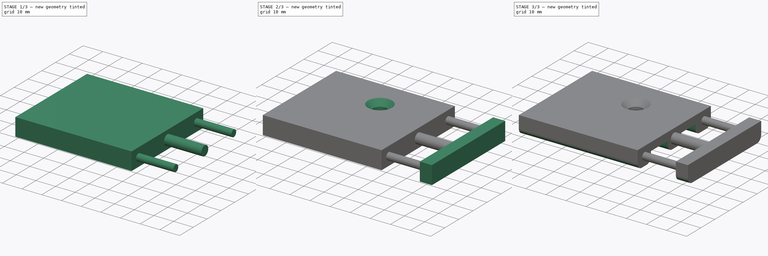
[diagram: build sequence overview — one tinted view per stage of 3, left to right]
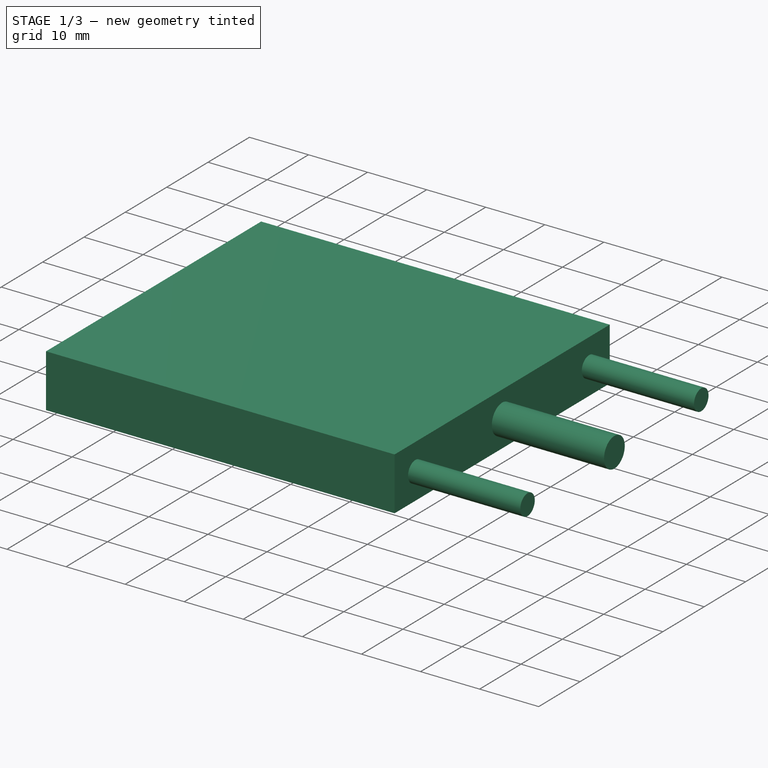
[diagram: stage 1 of 3 — iso view after this stage's code; geometry added in this stage tinted green]
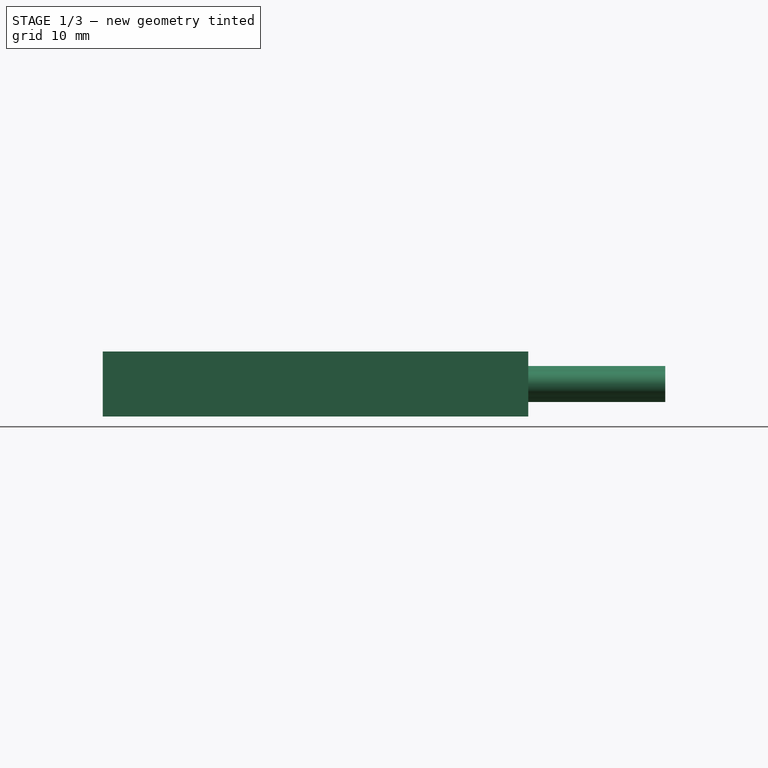
[diagram: stage 1 of 3 — front view after this stage's code; geometry added in this stage tinted green]
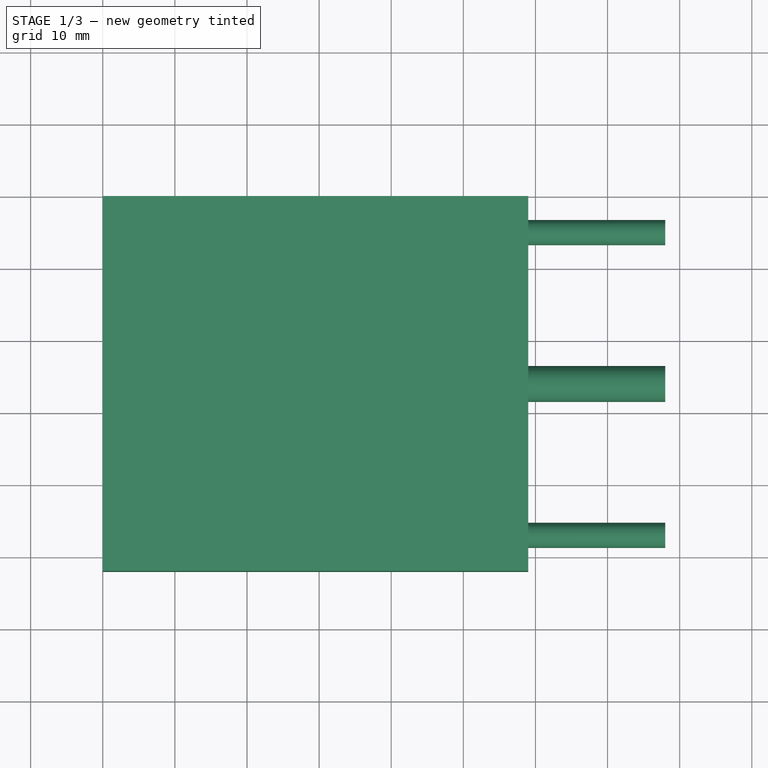
[diagram: stage 1 of 3 — top view after this stage's code; geometry added in this stage tinted green]
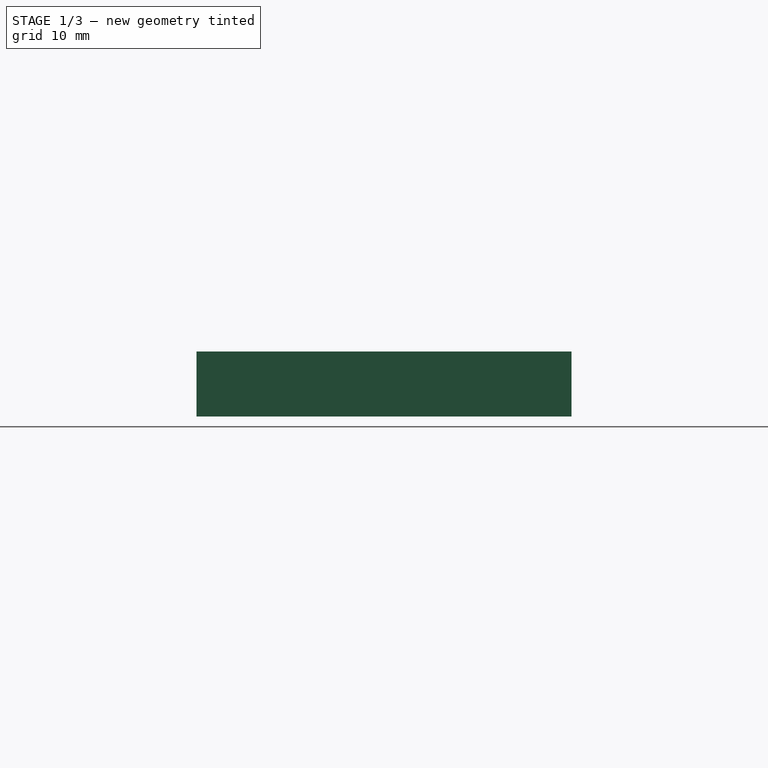
[diagram: stage 1 of 3 — right view after this stage's code; geometry added in this stage tinted green]
FCSTD DOCUMENT  (FreeCAD 0.18R16155 (Git))
Label: biltema_27-0500_mobilholder_cykel_clamp
License: All rights reserved
LicenseURL: http://en.wikipedia.org/wiki/All_rights_reserved
objects: Sketcher::SketchObject×5, PartDesign::Pad×3, PartDesign::Hole×1, PartDesign::Pocket×1, PartDesign::Fillet×1, PartDesign::Body×1
note: 17 computed .brp shape members not serialized (recipe doc carries the construction recipe); baked Part::Feature solids carry a one-line shape summary decoded from their .brp

FEATURE [Sketcher::SketchObject] Sketch
  MapMode = 5
  Support = -> [XY_Plane]
  sketch-geometry (4):
    g0: LineSegment StartX=0 StartY=0 StartZ=0 EndX=59 EndY=0 EndZ=0
    g1: LineSegment StartX=59 StartY=0 StartZ=0 EndX=59 EndY=-52 EndZ=0
    g2: LineSegment StartX=59 StartY=-52 StartZ=0 EndX=0 EndY=-52 EndZ=0
    g3: LineSegment StartX=0 StartY=-52 StartZ=0 EndX=0 EndY=0 EndZ=0
  constraints (11):
    c: Coincident(g0,g1)
    c: Coincident(g1,g2)
    c: Coincident(g2,g3)
    c: Coincident(g3,g0)
    c: Horizontal(g0)
    c: Horizontal(g2)
    c: Vertical(g1)
    c: Vertical(g3)
    c: DistanceX(g0,g0) = 59
    c: DistanceY(g3,g3) = 52
    c: Coincident(g0,g-1)
FEATURE [PartDesign::Pad] Pad
  Length = 9
  Length2 = 100
  Profile = -> Sketch
  Type = 0
FEATURE [Sketcher::SketchObject] Sketch001
  ExternalGeometry = -> [Pad]
  MapMode = 5
  Placement = pos=(59,0,0) rot=(0.57735,0.57735,0.57735;2.0944rad)
  Support = -> [Pad]
  sketch-geometry (5):
    g0: Circle CenterX=-47 CenterY=4.5 CenterZ=0 NormalX=0 NormalY=0 NormalZ=1 AngleXU=0 Radius=1.75
    g1: Circle CenterX=-5 CenterY=4.5 CenterZ=0 NormalX=0 NormalY=0 NormalZ=1 AngleXU=0 Radius=1.75
    g2: LineSegment [constr] StartX=-52 StartY=4.5 StartZ=0 EndX=0 EndY=4.5 EndZ=0
    g3: GeomPoint X=-26 Y=4.5 Z=0
    g4: Circle CenterX=-26 CenterY=4.5 CenterZ=0 NormalX=0 NormalY=0 NormalZ=1 AngleXU=0 Radius=2.5
  constraints (11):
    c: Diameter(g0) = 3.5
    c: Equal(g0,g1) = 3.5
    c: Horizontal(g2)
    c: Vertical(g2,g-1)
    c: Symmetric(g-3,g-4,g2)
    c: PointOnObject(g1,g2)
    c: DistanceX(g0,g1) = 42
    c: Symmetric(g2,g2,g3)
    c: Symmetric(g1,g0,g3)
    c: Coincident(g4,g3)
    c: Diameter(g4) = 5
FEATURE [PartDesign::Pad] Pad001
  BaseFeature = -> Pad
  Length = 19
  Length2 = 100
  Profile = -> Sketch001
  Type = 0
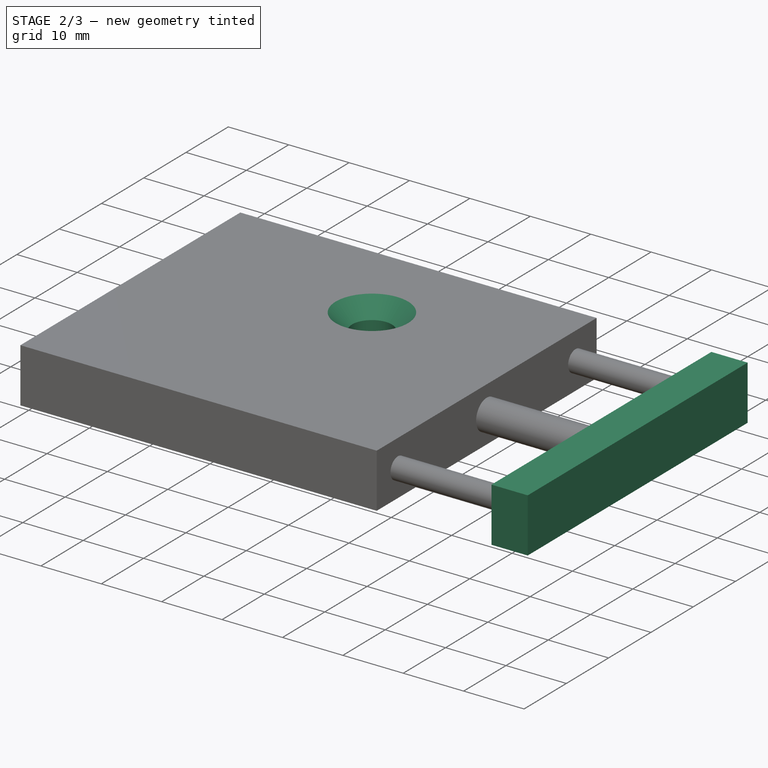
[diagram: stage 2 of 3 — iso view after this stage's code; geometry added in this stage tinted green]
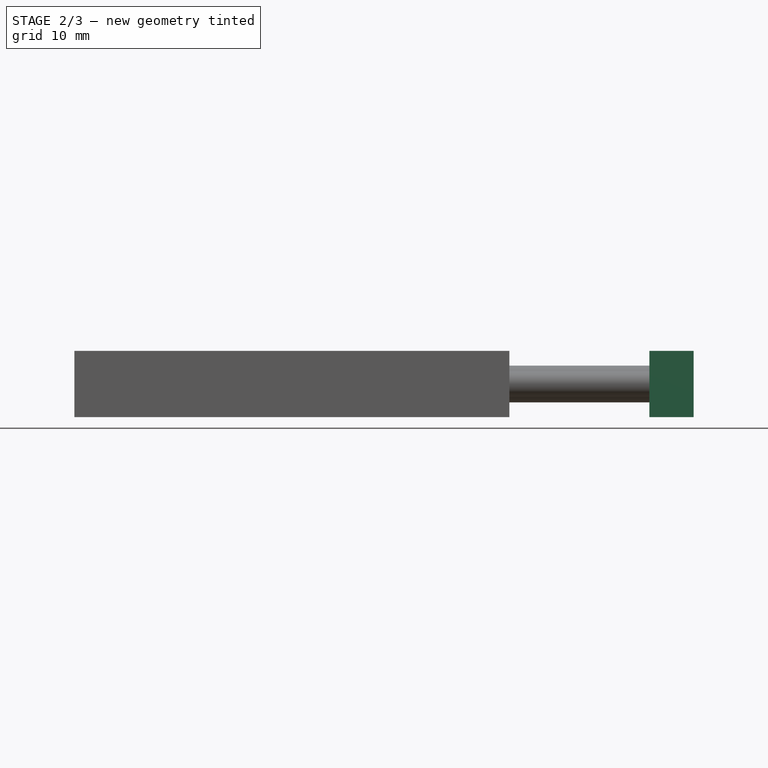
[diagram: stage 2 of 3 — front view after this stage's code; geometry added in this stage tinted green]
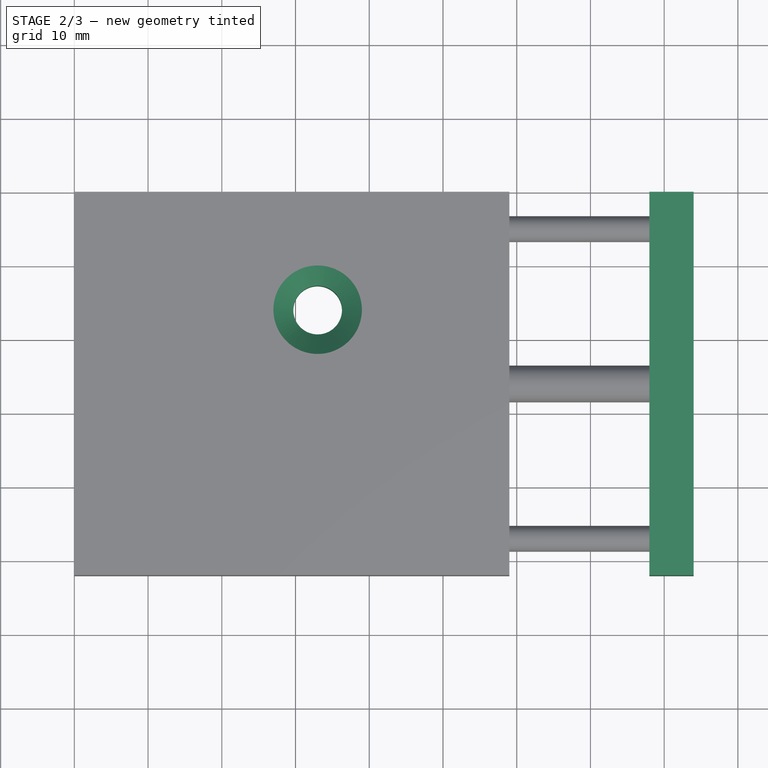
[diagram: stage 2 of 3 — top view after this stage's code; geometry added in this stage tinted green]
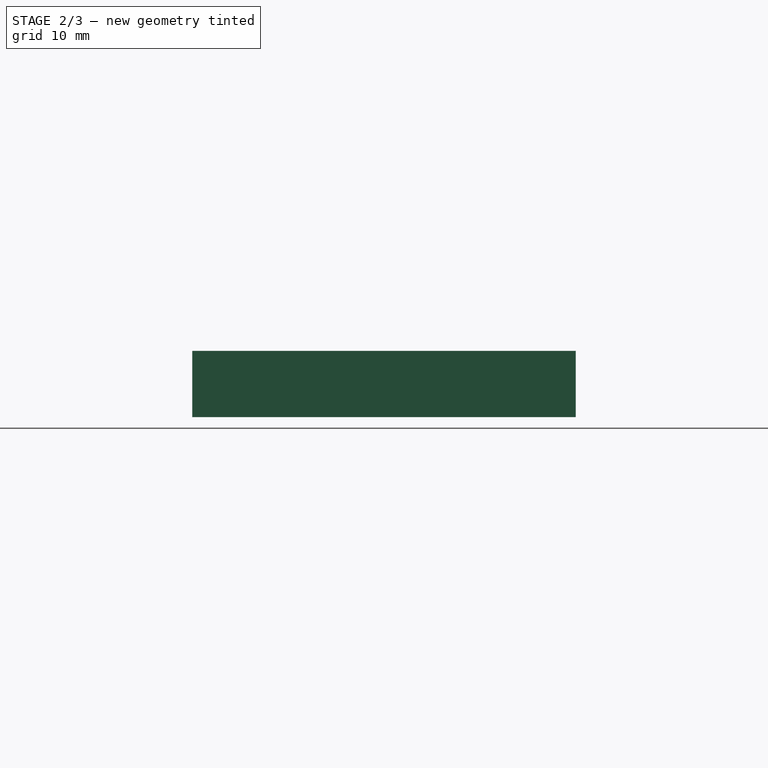
[diagram: stage 2 of 3 — right view after this stage's code; geometry added in this stage tinted green]
FEATURE [Sketcher::SketchObject] Sketch002
  ExternalGeometry = -> [Pad001]
  MapMode = 5
  Placement = pos=(78,0,0) rot=(0.57735,0.57735,0.57735;2.0944rad)
  Support = -> [Pad001]
  sketch-geometry (4):
    g0: LineSegment StartX=-52 StartY=0 StartZ=0 EndX=0 EndY=0 EndZ=0
    g1: LineSegment StartX=0 StartY=0 StartZ=0 EndX=0 EndY=9 EndZ=0
    g2: LineSegment StartX=0 StartY=9 StartZ=0 EndX=-52 EndY=9 EndZ=0
    g3: LineSegment StartX=-52 StartY=9 StartZ=0 EndX=-52 EndY=0 EndZ=0
  constraints (10):
    c: Coincident(g0,g1)
    c: Coincident(g1,g2)
    c: Coincident(g2,g3)
    c: Coincident(g3,g0)
    c: Horizontal(g0)
    c: Horizontal(g2)
    c: Vertical(g1)
    c: Vertical(g3)
    c: Coincident(g0,g-4)
    c: Coincident(g1,g-3)
FEATURE [PartDesign::Pad] Pad002
  BaseFeature = -> Pad001
  Length = 6
  Length2 = 100
  Profile = -> Sketch002
  Type = 0
FEATURE [Sketcher::SketchObject] Sketch003
  MapMode = 5
  Placement = pos=(0,0,9) rot=(0,0,1;0rad)
  Support = -> [Pad002]
  sketch-geometry (1):
    g0: Circle CenterX=33 CenterY=-16 CenterZ=0 NormalX=0 NormalY=0 NormalZ=1 AngleXU=0 Radius=3
  constraints (3):
    c: DistanceX(g-1,g0) = 33
    c: DistanceY(g0,g-1) = 16
    c: Diameter(g0) = 6
FEATURE [PartDesign::Hole] Hole
  BaseFeature = -> Pad002
  Depth = 25
  DepthType = 0
  Diameter = 6.6
  DrillPoint = 1
  DrillPointAngle = 118
  HoleCutCountersinkAngle = 90
  HoleCutDepth = 0
  HoleCutDiameter = 12
  HoleCutType = 2
  ModelActualThread = false
  Profile = -> Sketch003
  Tapered = false
  TaperedAngle = 90
  ThreadAngle = 0
  ThreadClass = 0
  ThreadCutOffInner = 0
  ThreadCutOffOuter = 0
  ThreadDirection = 0
  ThreadFit = 0
  ThreadPitch = 0
  ThreadSize = 7
  ThreadType = 1
  Threaded = false
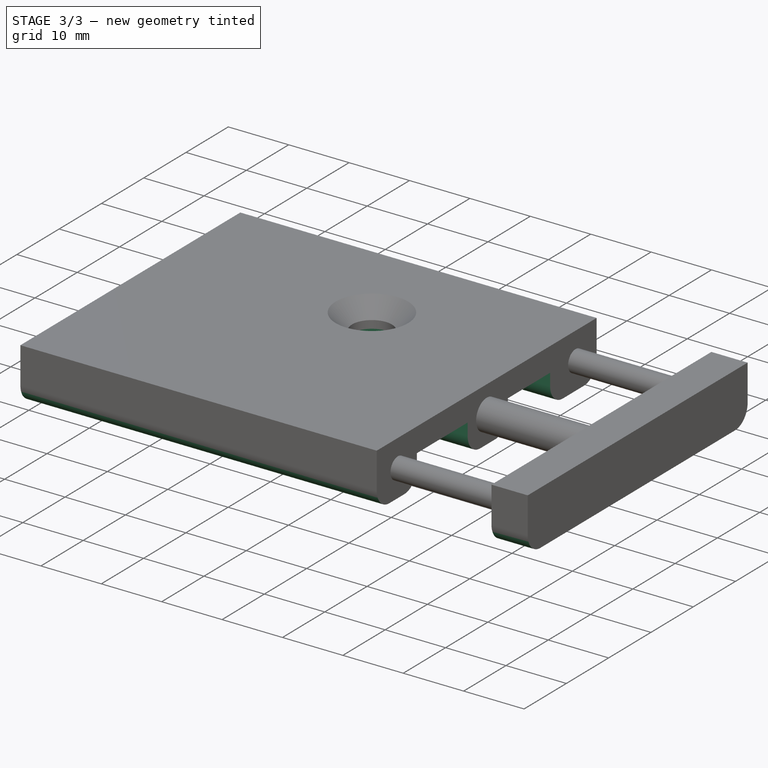
[diagram: stage 3 of 3 — iso view after this stage's code; geometry added in this stage tinted green]
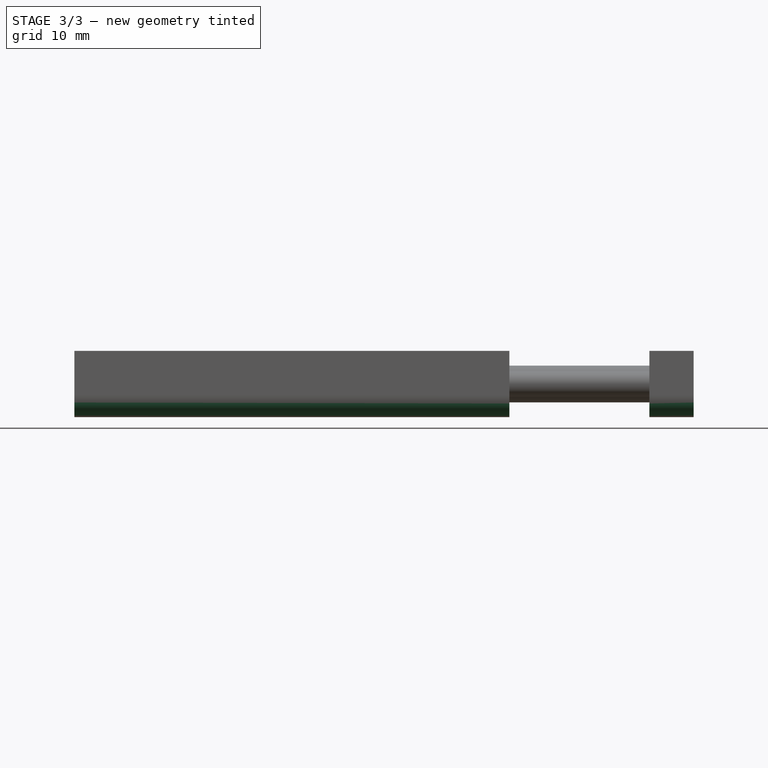
[diagram: stage 3 of 3 — front view after this stage's code; geometry added in this stage tinted green]
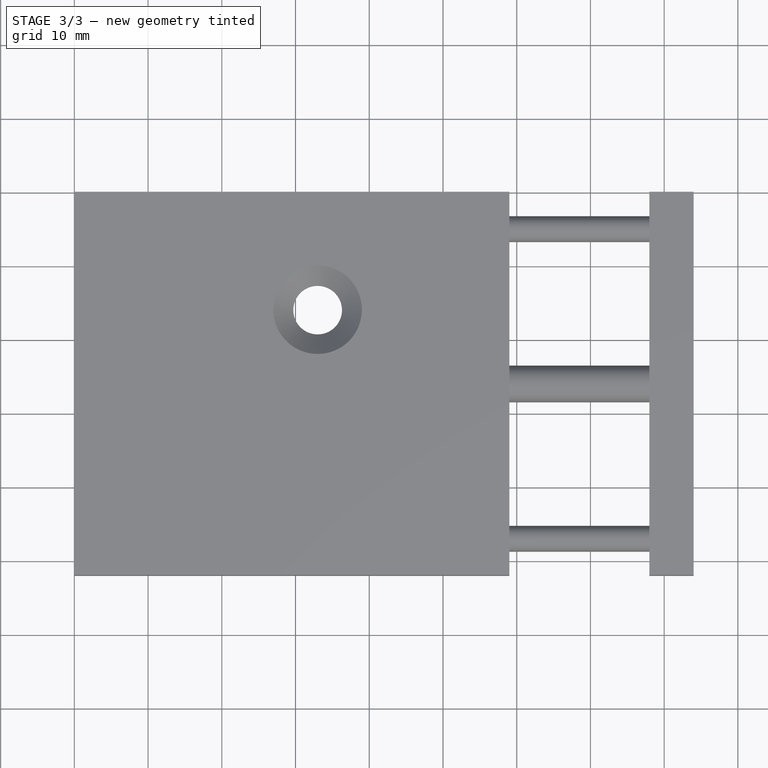
[diagram: stage 3 of 3 — top view after this stage's code; geometry added in this stage tinted green]
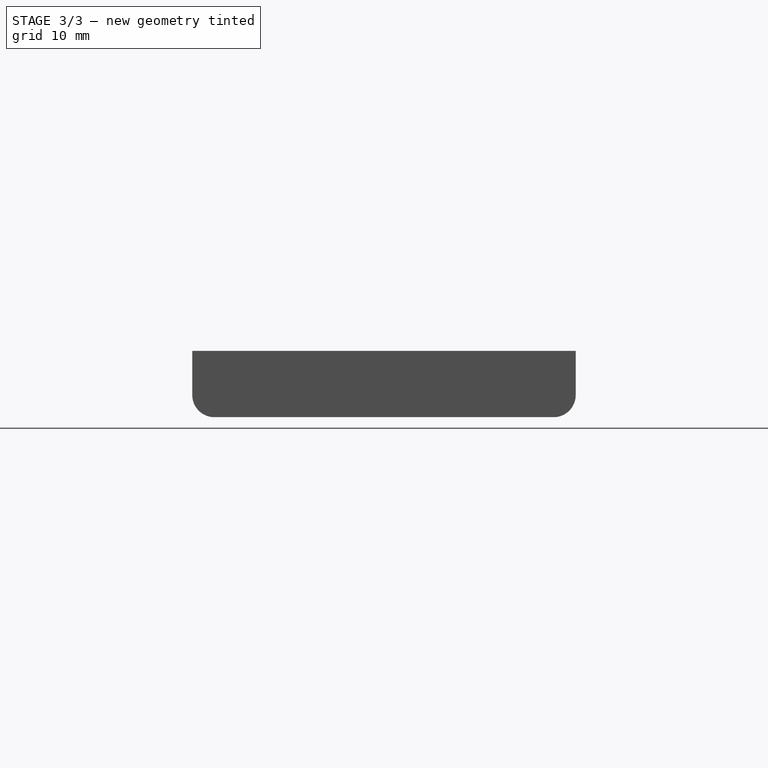
[diagram: stage 3 of 3 — right view after this stage's code; geometry added in this stage tinted green]
FEATURE [Sketcher::SketchObject] Sketch004
  ExternalGeometry = -> [Hole]
  MapMode = 5
  Placement = pos=(0,0,0) rot=(1,0,0;3.14159rad)
  Support = -> [Hole]
  sketch-geometry (9):
    g0: LineSegment StartX=0 StartY=21 StartZ=0 EndX=59 EndY=21 EndZ=0
    g1: LineSegment StartX=59 StartY=21 StartZ=0 EndX=59 EndY=11 EndZ=0
    g2: LineSegment StartX=59 StartY=11 StartZ=0 EndX=0 EndY=11 EndZ=0
    g3: LineSegment StartX=0 StartY=11 StartZ=0 EndX=0 EndY=21 EndZ=0
    g4: LineSegment [constr] StartX=0 StartY=16 StartZ=0 EndX=59 EndY=16 EndZ=0
    g5: LineSegment StartX=0 StartY=42.5 StartZ=0 EndX=59 EndY=42.5 EndZ=0
    g6: LineSegment StartX=59 StartY=42.5 StartZ=0 EndX=59 EndY=30.5 EndZ=0
    g7: LineSegment StartX=59 StartY=30.5 StartZ=0 EndX=0 EndY=30.5 EndZ=0
    g8: LineSegment StartX=0 StartY=30.5 StartZ=0 EndX=0 EndY=42.5 EndZ=0
  constraints (27):
    c: Coincident(g0,g1)
    c: Coincident(g1,g2)
    c: Coincident(g2,g3)
    c: Coincident(g3,g0)
    c: Horizontal(g0)
    c: Horizontal(g2)
    c: Vertical(g1)
    c: Vertical(g3)
    c: Vertical(g-4,g1)
    c: Vertical(g2,g-1)
    c: PointOnObject(g4,g3)
    c: Horizontal(g4)
    c: Symmetric(g1,g0,g4)
    c: PointOnObject(g-3,g4)
    c: DistanceY(g1,g1) = 10
    c: Coincident(g5,g6)
    c: Coincident(g6,g7)
    c: Coincident(g7,g8)
    c: Coincident(g8,g5)
    c: Horizontal(g5)
    c: Horizontal(g7)
    c: Vertical(g6)
    c: Vertical(g8)
    c: PointOnObject(g6,g-4)
    c: PointOnObject(g7,g-5)
    c: DistanceY(g6,g6) = 12
    c: DistanceY(g0,g6) = 9.5
FEATURE [PartDesign::Pocket] Pocket
  BaseFeature = -> Hole
  Length = 5
  Length2 = 100
  Profile = -> Sketch004
  Type = 0
FEATURE [PartDesign::Fillet] Fillet
  Base = -> Pocket [Edge36,Edge2,Edge35,Edge43,Edge45,Edge51,Edge53,Edge1]
  BaseFeature = -> Pocket
  Radius = 3
FEATURE [PartDesign::Body] Body
  Group = -> [Sketch,Pad,Sketch001,Pad001,Sketch002,Pad002,Sketch003,Hole,Sketch004,Pocket,Fillet]
  Origin = -> Origin
  Tip = -> Fillet
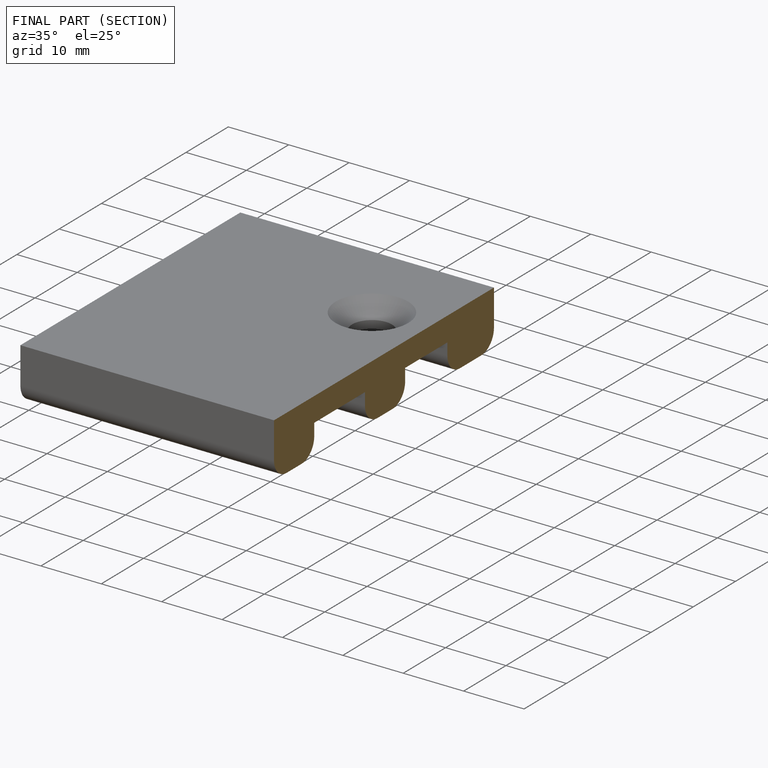
[diagram: finished part — half-section view (interior)]
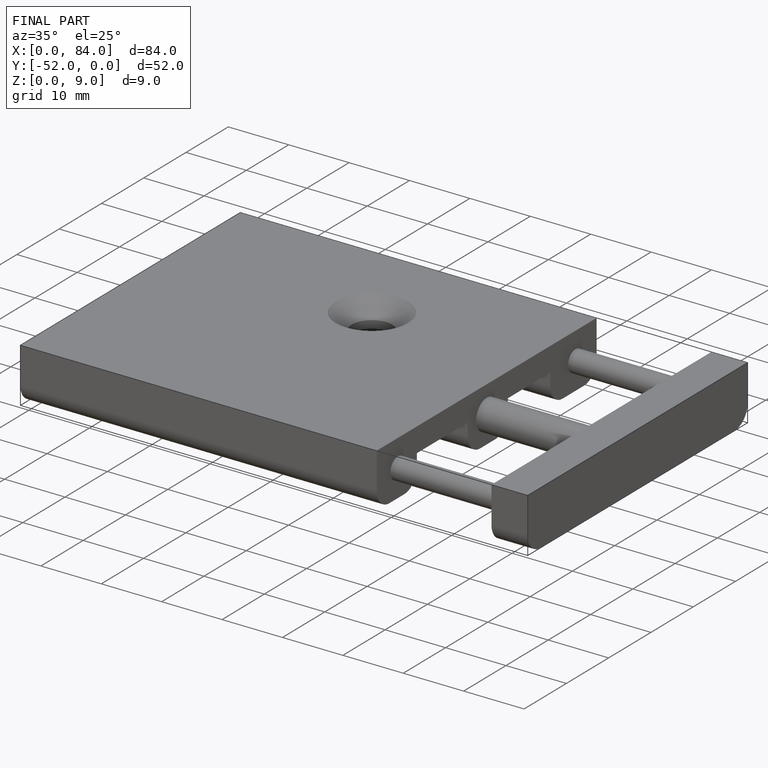
[diagram: finished part — iso view with bounding-box wireframe]
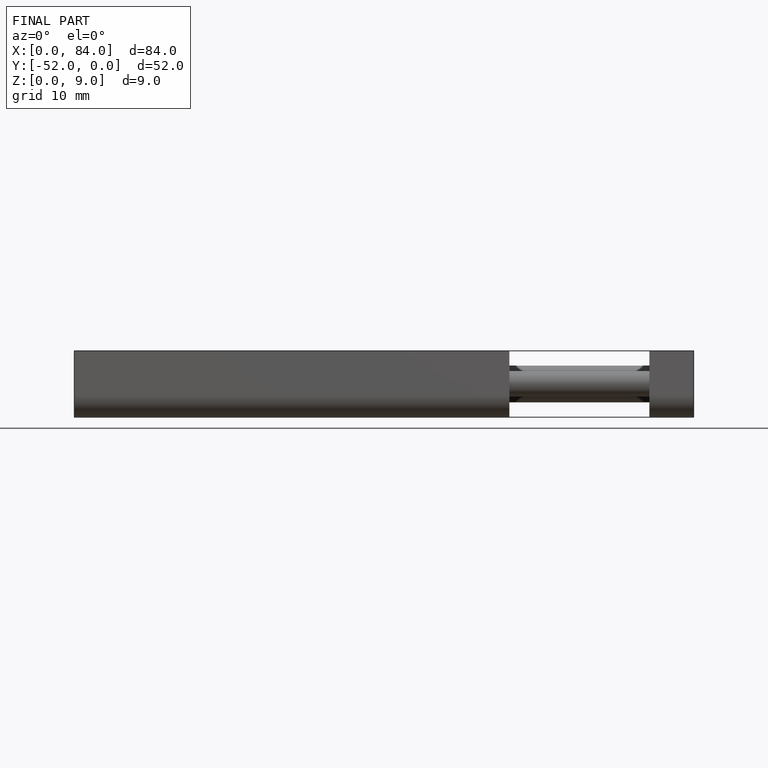
[diagram: finished part — front view with bounding-box wireframe]
